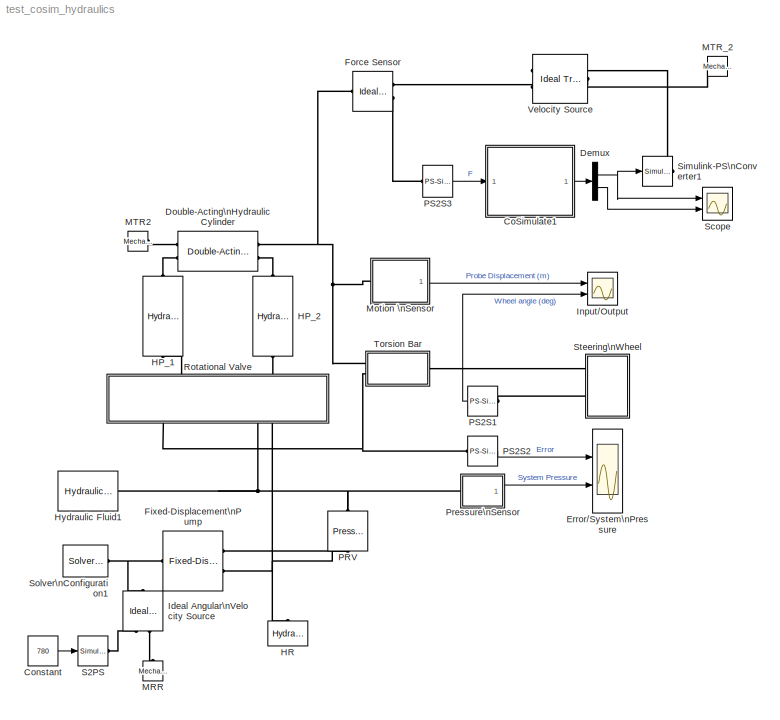
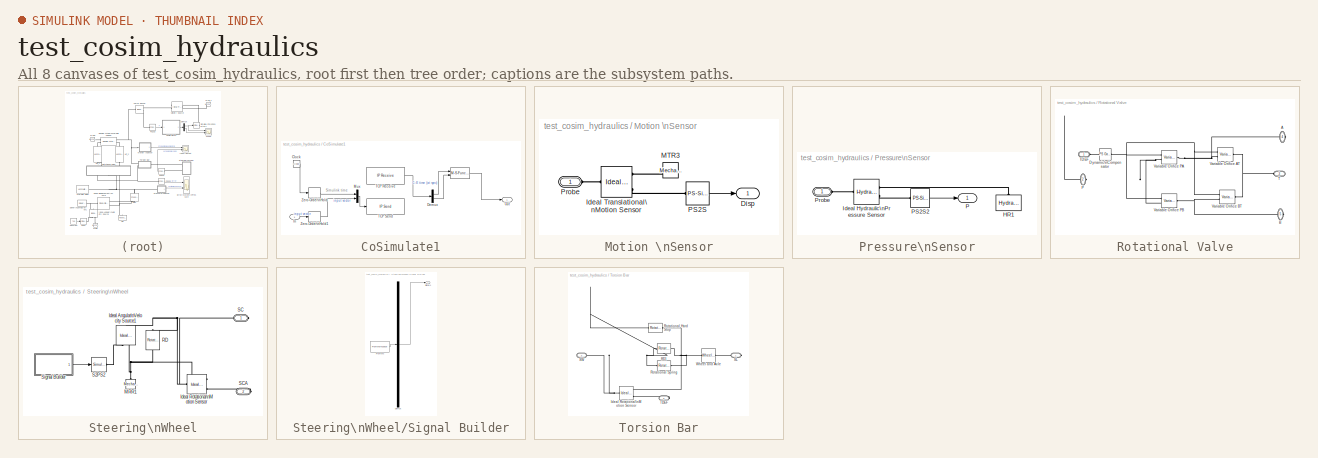
[diagram: thumbnail index - all 8 canvases of the model, root first then tree order]
MODEL test_cosim_hydraulics
KIND model
CONFIG InitFcn = valve_orifice_area = 0.16;\nx0 = 0.8;
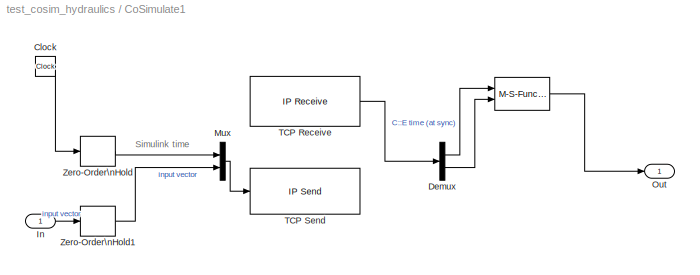
BLOCK [SubSystem] CoSimulate1
  AncestorBlock = CEcosimulation/CoSimulate1
  Description = This block can be used to exchange data with Chrono::Engine.                                                                                      \nA Chrono::Engine program with a running ChCosimulation inferface must be started, it will work as a server; then the Simulink program must be run.\nNote! check that the dimensions of the exchanged vectors do match!
  FunctionWithSeparateData = off
  MaskCallbackString = ||||
  MaskDisplay = image(imread('block_logo.png'))\ndisp('C::E                   ')
  MaskEnableString = on,on,on,on,on
  MaskHideContents = off
  MaskIconFrame = on
  MaskIconOpaque = on
  MaskIconRotate = none
  MaskIconUnits = autoscale
  MaskInitialization = block_receive = [gcb, '/TCP Receive'];\nset_param(block_receive, 'SampleTime', num2str(com_step));\nset_param(block_receive, 'Host', host_name);\nset_param(block_receive, 'Port', num2str(tcp_port));\nset_param(block_receive, 'DataSize', num2str(tcp_data_size+1));\nset_param(block_receive, 'Timeout', num2str(tcp_timeout));\nblock_send = [gcb, '/TCP Send'];\nset_param(block_send, 'Host', host_name);...<+51ch>
  MaskPortRotate = default
  MaskPromptString = Communication step size|N. of scalars received from C::E (as block output)|TCP host name (ex. 'localhost', or 'www.myhost.com')|TCP port (ex. 50007)|TCP timeout (seconds)
  MaskStyleString = edit,edit,edit,edit,edit
  MaskToolTipString = on,on,on,on,on
  MaskTunableValueString = off,off,off,off,off
  MaskValueString = 0.001|2|localhost|50009|15
  MaskVariables = com_step=@1;tcp_data_size=@2;host_name=&3;tcp_port=&4;tcp_timeout=&5;
  MaskVisibilityString = on,on,on,on,on
  MinAlgLoopOccurrences = off
  Opaque = off
  Ports = [1, 1]
  Priority = 100
  PropExecContextOutsideSubsystem = off
  RTWSystemCode = Auto
  RequestExecContextInheritance = off
  SID = 81
BLOCK [M-S-Function] CoSimulate1/ 
  FunctionName = CEcosimulation_interp
  Ports = [2, 1]
  SID = 23
BLOCK [Clock] CoSimulate1/Clock
  Decimation = 10
  SID = 14
BLOCK [Demux] CoSimulate1/Demux
  DisplayOption = bar
  Outputs = [1 -1]
  Ports = [1, 2]
  SID = 15
BLOCK [Inport] CoSimulate1/In
  IconDisplay = Port number
  SID = 13
BLOCK [Mux] CoSimulate1/Mux
  DisplayOption = bar
  Inputs = 2
  Ports = [2, 1]
  SID = 16
BLOCK [Outport] CoSimulate1/Out
  IconDisplay = Port number
  SID = 22
BLOCK [Reference] CoSimulate1/TCP Receive  REF=instrumentlib/TCP//IP Receive
  ByteOrder = LittleEndian
  DataSize = 3
  DataType = double
  DialogController = instrumentcreatedialog
  DialogControllerArgs = DataTag0
  EnableBlockingMode = on
  Host = localhost
  Port = 50009
  Ports = [0, 1]
  Priority = 1
  SID = 17
  SampleTime = 0.001
  SourceBlock = instrumentlib/TCP//IP Receive
  SourceType = TCP/IP Receive
  Timeout = 15
BLOCK [Reference] CoSimulate1/TCP Send  REF=instrumentlib/TCP//IP Send
  ByteOrder = LittleEndian
  DialogController = instrumentcreatedialog
  DialogControllerArgs = DataTag1
  EnableBlockingMode = on
  Host = localhost
  Port = 50009
  Ports = [1]
  Priority = 2
  SID = 18
  SourceBlock = instrumentlib/TCP//IP Send
  SourceType = TCP/IP Send
  Timeout = 10
BLOCK [ZeroOrderHold] CoSimulate1/Zero-Order\nHold
  Priority = 0
  SID = 20
  SampleTime = com_step
BLOCK [ZeroOrderHold] CoSimulate1/Zero-Order\nHold1
  Priority = 0
  SID = 21
  SampleTime = com_step
BLOCK [Constant] Constant
  OutDataType = sfix(16)
  OutScaling = 2^0
  SID = 1
  Value = 780
BLOCK [Demux] Demux
  DisplayOption = bar
  Outputs = 2
  Ports = [1, 2]
  SID = 70
BLOCK [Reference] Double-Acting\nHydraulic Cylinder  REF=sh_lib/Hydraulic Cylinders/Double-Acting\nHydraulic Cylinder
  ClassName = cylinder_da
  D = 150
  D_unit = N/(m/s)
  DialogController = NetworkEngine.DynNeDlgSource
  FunctionWithSeparateData = off
  LocalVarLogging = []
  Ports = [0, 0, 0, 0, 0, 2, 2]
  RTWMemSecDataConstants = Inherit from model
  RTWMemSecDataInternal = Inherit from model
  RTWMemSecDataParameters = Inherit from model
  RTWMemSecFuncExecute = Inherit from model
  RTWMemSecFuncInitTerm = Inherit from model
  SID = 2
  SchemaVersion = 1
  ShowPortLabels = FromPortIcon
  SourceBlock = sh_lib/Hydraulic Cylinders/Double-Acting\nHydraulic Cylinder
  SourceType = Double-Acting\nHydraulic Cylinder
  SystemSampleTime = -1
  Tag = Factory Generic
  area_A = 9.1
  area_A_unit = cm^2
  area_B = 9.1
  area_B_unit = cm^2
  dead_vol_A = 1e-04
  dead_vol_A_unit = m^3
  dead_vol_B = 1e-04
  dead_vol_B_unit = m^3
  init_pos = 9.2
  init_pos_unit = cm
  k_sh = 1.4
  k_sh_unit = 1
  or = 1
  or_unit = 1
  stiff = 1e+06
  stiff_unit = N/m
  stroke = 18.4
  stroke_unit = cm
BLOCK [Scope] Error//System\nPressure
  DataFormat = StructureWithTime
  Floating = off
  NumInputPorts = 2
  Ports = [2]
  SID = 3
  SampleTime = 0
  SaveName = ScopeDataCE
  SaveToWorkspace = on
  TimeRange = 20
  YMax = 0.4~10
  YMin = -0.4~7
BLOCK [Reference] Fixed-Displacement\nPump  REF=sh_lib/Pumps and Motors/Fixed-Displacement\nPump
  ClassName = fx_displ_pump
  D = 1.14e-06
  D_unit = m^3/rad
  DialogController = NetworkEngine.DynNeDlgSource
  FunctionWithSeparateData = off
  LocalVarDescs = |Pump delivery (m^3/s)|Leakage flow rate (m^3/s)|Driving shaft torque (N*m)|Output flow power (W)|Pressure differential (Pa)|Driving shaft angular velocity (rad/s)
  LocalVarLogging = [0 0 0 0 0 0]
  LocalVarNames = |pump_delivery|leakage_flow|torque|power_hyd|pressure_diff|shaft_ang_vel
  Ports = [0, 0, 0, 0, 0, 1, 2]
  RTWMemSecDataConstants = Inherit from model
  RTWMemSecDataInternal = Inherit from model
  RTWMemSecDataParameters = Inherit from model
  RTWMemSecFuncExecute = Inherit from model
  RTWMemSecFuncInitTerm = Inherit from model
  SID = 4
  SchemaVersion = 1
  ShowPortLabels = FromPortIcon
  SourceBlock = sh_lib/Pumps and Motors/Fixed-Displacement\nPump
  SourceType = Fixed-Displacement\nPump
  SystemSampleTime = -1
  Tag = Factory Generic
  efficiency_tot = 0.8
  efficiency_tot_unit = 1
  efficiency_vol = 0.92
  efficiency_vol_unit = 1
  leakage_flow_Log = off
  power_hyd_Log = off
  pr_nominal = 1e+07
  pr_nominal_unit = Pa
  pressure_diff_Log = off
  pump_delivery_Log = off
  shaft_ang_vel_Log = off
  torque_Log = off
  visc_nominal = 18
  visc_nominal_unit = cSt
  w_nominal = 188
  w_nominal_unit = rad/s
BLOCK [Reference] Force Sensor  REF=fl_lib/Mechanical/Mechanical Sensors/Ideal Force Sensor
  ClassName = sensor_force
  DialogController = NetworkEngine.DynNeDlgSource
  FunctionWithSeparateData = off
  LocalVarDescs = |v|f
  LocalVarLogging = []
  LocalVarNames = |v|f
  Ports = [0, 0, 0, 0, 0, 1, 2]
  RTWMemSecDataConstants = Inherit from model
  RTWMemSecDataInternal = Inherit from model
  RTWMemSecDataParameters = Inherit from model
  RTWMemSecFuncExecute = Inherit from model
  RTWMemSecFuncInitTerm = Inherit from model
  SID = 71
  SchemaVersion = 1
  ShowPortLabels = FromPortIcon
  SourceBlock = fl_lib/Mechanical/Mechanical Sensors/Ideal Force Sensor
  SourceType = Ideal Force Sensor
  SystemSampleTime = -1
  Tag = Factory Generic
  f_Log = off
  v_Log = off
BLOCK [Reference] HP_1  REF=sh_lib/Pipelines/Hydraulic Pipeline
  ClassName = pipeline_hyd
  D_h = 0.0112
  D_h_unit = m
  DialogController = NetworkEngine.DynNeDlgSource
  FunctionWithSeparateData = off
  LocalVarLogging = []
  Ports = [0, 0, 0, 0, 0, 1, 1]
  RTWMemSecDataConstants = Inherit from model
  RTWMemSecDataInternal = Inherit from model
  RTWMemSecDataParameters = Inherit from model
  RTWMemSecFuncExecute = Inherit from model
  RTWMemSecFuncInitTerm = Inherit from model
  Re_lam = 2e+03
  Re_lam_unit = 1
  Re_turb = 4e+03
  Re_turb_unit = 1
  SID = 5
  SchemaVersion = 1
  ShowPortLabels = FromPortIcon
  SourceBlock = sh_lib/Pipelines/Hydraulic Pipeline
  SourceType = Hydraulic Pipeline
  SystemSampleTime = -1
  Tag = Factory Generic
  area = 1e-04
  area_unit = m^2
  cs_type = 1
  cs_type_unit = 1
  d_in = 6
  d_in_unit = mm
  k_sh = 1.4
  k_sh_unit = 1
  length = 1.8
  length_ad = 1
  length_ad_unit = m
  length_unit = m
  pr_r_coef = 2e-12
  pr_r_coef_unit = m/Pa
  roughness = 1.5e-05
  roughness_unit = m
  s_factor = 64
  s_factor_unit = 1
  time_const = 0.01
  time_const_unit = s
  wall_type = 1
  wall_type_unit = 1
BLOCK [Reference] HP_2  REF=sh_lib/Pipelines/Hydraulic Pipeline
  ClassName = pipeline_hyd
  D_h = 0.0112
  D_h_unit = m
  DialogController = NetworkEngine.DynNeDlgSource
  FunctionWithSeparateData = off
  LocalVarLogging = []
  Ports = [0, 0, 0, 0, 0, 1, 1]
  RTWMemSecDataConstants = Inherit from model
  RTWMemSecDataInternal = Inherit from model
  RTWMemSecDataParameters = Inherit from model
  RTWMemSecFuncExecute = Inherit from model
  RTWMemSecFuncInitTerm = Inherit from model
  Re_lam = 2e+03
  Re_lam_unit = 1
  Re_turb = 4e+03
  Re_turb_unit = 1
  SID = 6
  SchemaVersion = 1
  ShowPortLabels = FromPortIcon
  SourceBlock = sh_lib/Pipelines/Hydraulic Pipeline
  SourceType = Hydraulic Pipeline
  SystemSampleTime = -1
  Tag = Factory Generic
  area = 1e-04
  area_unit = m^2
  cs_type = 1
  cs_type_unit = 1
  d_in = 6
  d_in_unit = mm
  k_sh = 1.4
  k_sh_unit = 1
  length = 1.6
  length_ad = 1
  length_ad_unit = m
  length_unit = m
  pr_r_coef = 2e-12
  pr_r_coef_unit = m/Pa
  roughness = 1.5e-05
  roughness_unit = m
  s_factor = 64
  s_factor_unit = 1
  time_const = 0.01
  time_const_unit = s
  wall_type = 1
  wall_type_unit = 1
BLOCK [Reference] HR  REF=fl_lib/Hydraulic/Hydraulic Elements/Hydraulic Reference
  ClassName = hydro_reference
  DialogController = NetworkEngine.DynNeDlgSource
  FunctionWithSeparateData = off
  LocalVarDescs = |q
  LocalVarLogging = []
  LocalVarNames = |q
  Ports = [0, 0, 0, 0, 0, 1]
  RTWMemSecDataConstants = Inherit from model
  RTWMemSecDataInternal = Inherit from model
  RTWMemSecDataParameters = Inherit from model
  RTWMemSecFuncExecute = Inherit from model
  RTWMemSecFuncInitTerm = Inherit from model
  SID = 7
  SchemaVersion = 1
  ShowPortLabels = FromPortIcon
  SourceBlock = fl_lib/Hydraulic/Hydraulic Elements/Hydraulic Reference
  SourceType = Hydraulic Reference
  SystemSampleTime = -1
  Tag = Factory Generic
  q_Log = off
BLOCK [Reference] Hydraulic Fluid1  REF=sh_lib/Hydraulic Utilities/Hydraulic Fluid
  ClassName = hydraulic_fluid
  DataSource = 1
  DataSource_unit = 1
  DialogController = NetworkEngine.DynNeDlgSource
  FunctionWithSeparateData = off
  LocalVarLogging = []
  Ports = [0, 0, 0, 0, 0, 0, 1]
  RTWMemSecDataConstants = Inherit from model
  RTWMemSecDataInternal = Inherit from model
  RTWMemSecDataParameters = Inherit from model
  RTWMemSecFuncExecute = Inherit from model
  RTWMemSecFuncInitTerm = Inherit from model
  SID = 8
  SchemaVersion = 1
  SelFluid = 9
  SelFluid_unit = 1
  ShowPortLabels = FromPortIcon
  SourceBlock = sh_lib/Hydraulic Utilities/Hydraulic Fluid
  SourceType = Hydraulic Fluid
  SysTemp = 60
  SysTemp_unit = c
  SystemSampleTime = -1
  Tag = Factory Generic
  TrapAir = 0.005
  TrapAir_unit = 1
  ViscDerFactor = 1
  ViscDerFactor_unit = 1
BLOCK [Reference] Ideal Angular\nVelocity Source  REF=fl_lib/Mechanical/Mechanical Sources/Ideal Angular\nVelocity Source
  ClassName = source_ang_velocity
  DialogController = NetworkEngine.DynNeDlgSource
  FunctionWithSeparateData = off
  LocalVarDescs = |Torque (N*m)|Relative velocity (rad/s)|Power generated by the sourcec(W)
  LocalVarLogging = [0 0 0]
  LocalVarNames = |torque|rel_velocity|power
  Ports = [0, 0, 0, 0, 0, 1, 2]
  RTWMemSecDataConstants = Inherit from model
  RTWMemSecDataInternal = Inherit from model
  RTWMemSecDataParameters = Inherit from model
  RTWMemSecFuncExecute = Inherit from model
  RTWMemSecFuncInitTerm = Inherit from model
  SID = 9
  SchemaVersion = 1
  ShowPortLabels = FromPortIcon
  SourceBlock = fl_lib/Mechanical/Mechanical Sources/Ideal Angular\nVelocity Source
  SourceType = Ideal Angular\nVelocity Source
  SystemSampleTime = -1
  Tag = Factory Generic
  t_Log = off
  w_Log = off
BLOCK [Scope] Input//Output
  DataFormat = StructureWithTime
  Floating = off
  NumInputPorts = 2
  Ports = [2]
  SID = 10
  SampleTime = 0
  TimeRange = 20
  YMax = 0.01~15
  YMin = -0.0075~0
BLOCK [Reference] MRR  REF=fl_lib/Mechanical/Rotational Elements/Mechanical\nRotational Reference
  ClassName = reference_rot
  DialogController = NetworkEngine.DynNeDlgSource
  FunctionWithSeparateData = off
  LocalVarDescs = |t
  LocalVarLogging = []
  LocalVarNames = |t
  Ports = [0, 0, 0, 0, 0, 1]
  RTWMemSecDataConstants = Inherit from model
  RTWMemSecDataInternal = Inherit from model
  RTWMemSecDataParameters = Inherit from model
  RTWMemSecFuncExecute = Inherit from model
  RTWMemSecFuncInitTerm = Inherit from model
  SID = 18
  SchemaVersion = 1
  ShowPortLabels = FromPortIcon
  SourceBlock = fl_lib/Mechanical/Rotational Elements/Mechanical\nRotational Reference
  SourceType = Mechanical\nRotational Reference
  SystemSampleTime = -1
  Tag = Factory Generic
  t_Log = off
BLOCK [Reference] MTR2  REF=fl_lib/Mechanical/Translational\nElements/Mechanical\nTranslational\nReference
  ClassName = reference_transl
  DialogController = NetworkEngine.DynNeDlgSource
  FunctionWithSeparateData = off
  LocalVarDescs = |f
  LocalVarLogging = []
  LocalVarNames = |f
  Ports = [0, 0, 0, 0, 0, 1]
  RTWMemSecDataConstants = Inherit from model
  RTWMemSecDataInternal = Inherit from model
  RTWMemSecDataParameters = Inherit from model
  RTWMemSecFuncExecute = Inherit from model
  RTWMemSecFuncInitTerm = Inherit from model
  SID = 19
  SchemaVersion = 1
  ShowPortLabels = FromPortIcon
  SourceBlock = fl_lib/Mechanical/Translational\nElements/Mechanical\nTranslational\nReference
  SourceType = Mechanical\nTranslational\nReference
  SystemSampleTime = -1
  Tag = Factory Generic
  f_Log = off
BLOCK [Reference] MTR_2  REF=fl_lib/Mechanical/Translational\nElements/Mechanical\nTranslational\nReference
  ClassName = reference_transl
  DialogController = NetworkEngine.DynNeDlgSource
  FunctionWithSeparateData = off
  LocalVarDescs = |f
  LocalVarLogging = []
  LocalVarNames = |f
  Ports = [0, 0, 0, 0, 0, 1]
  RTWMemSecDataConstants = Inherit from model
  RTWMemSecDataInternal = Inherit from model
  RTWMemSecDataParameters = Inherit from model
  RTWMemSecFuncExecute = Inherit from model
  RTWMemSecFuncInitTerm = Inherit from model
  SID = 75
  SchemaVersion = 1
  ShowPortLabels = FromPortIcon
  SourceBlock = fl_lib/Mechanical/Translational\nElements/Mechanical\nTranslational\nReference
  SourceType = Mechanical\nTranslational\nReference
  SystemSampleTime = -1
  Tag = Factory Generic
  f_Log = off
BLOCK [SubSystem] Motion \nSensor
  FunctionWithSeparateData = off
  MaskHideContents = off
  MinAlgLoopOccurrences = off
  Opaque = off
  Ports = [0, 1, 0, 0, 0, 1]
  PropExecContextOutsideSubsystem = off
  RTWSystemCode = Auto
  RequestExecContextInheritance = off
  SID = 20
BLOCK [Outport] Motion \nSensor/Disp
  IconDisplay = Port number
  OutDataType = sfix(16)
  OutScaling = 2^0
  SID = 25
BLOCK [Reference] Motion \nSensor/Ideal Translational\nMotion Sensor  REF=fl_lib/Mechanical/Mechanical Sensors/Ideal Translational\nMotion Sensor
  ClassName = sensor_transl_motion
  DialogController = NetworkEngine.DynNeDlgSource
  FunctionWithSeparateData = off
  LocalVarDescs = |v|f|x
  LocalVarLogging = []
  LocalVarNames = |v|f|x
  Ports = [0, 0, 0, 0, 0, 1, 3]
  RTWMemSecDataConstants = Inherit from model
  RTWMemSecDataInternal = Inherit from model
  RTWMemSecDataParameters = Inherit from model
  RTWMemSecFuncExecute = Inherit from model
  RTWMemSecFuncInitTerm = Inherit from model
  SID = 21
  SchemaVersion = 1
  ShowPortLabels = FromPortIcon
  SourceBlock = fl_lib/Mechanical/Mechanical Sensors/Ideal Translational\nMotion Sensor
  SourceType = Ideal Translational\nMotion Sensor
  SystemSampleTime = -1
  Tag = Factory Generic
  f_Log = off
  offset = 0
  offset_unit = m
  v_Log = off
  x_Log = off
BLOCK [Reference] Motion \nSensor/MTR3  REF=fl_lib/Mechanical/Translational\nElements/Mechanical\nTranslational\nReference
  ClassName = reference_transl
  DialogController = NetworkEngine.DynNeDlgSource
  FunctionWithSeparateData = off
  LocalVarDescs = |f
  LocalVarLogging = []
  LocalVarNames = |f
  Ports = [0, 0, 0, 0, 0, 1]
  RTWMemSecDataConstants = Inherit from model
  RTWMemSecDataInternal = Inherit from model
  RTWMemSecDataParameters = Inherit from model
  RTWMemSecFuncExecute = Inherit from model
  RTWMemSecFuncInitTerm = Inherit from model
  SID = 22
  SchemaVersion = 1
  ShowPortLabels = FromPortIcon
  SourceBlock = fl_lib/Mechanical/Translational\nElements/Mechanical\nTranslational\nReference
  SourceType = Mechanical\nTranslational\nReference
  SystemSampleTime = -1
  Tag = Factory Generic
  f_Log = off
BLOCK [Reference] Motion \nSensor/PS2S  REF=nesl_utility/PS-Simulink\nConverter
  AffineConversion = off
  DialogController = NetworkEngine.DynNeUtilDlgSource
  FunctionWithSeparateData = off
  LeftPortType = input
  PhysicalDomain = network_engine_domain
  Ports = [0, 1, 0, 0, 0, 1]
  RTWMemSecDataConstants = Inherit from model
  RTWMemSecDataInternal = Inherit from model
  RTWMemSecDataParameters = Inherit from model
  RTWMemSecFuncExecute = Inherit from model
  RTWMemSecFuncInitTerm = Inherit from model
  RightPortType = output
  SID = 23
  ShowPortLabels = none
  SourceBlock = nesl_utility/PS-Simulink\nConverter
  SourceType = PS-Simulink\nConverter
  SubClassName = ps_output
  SystemSampleTime = -1
  Unit = 1
BLOCK [PMIOPort] Motion \nSensor/Probe
  Port = 1
  SID = 24
  Side = Left
BLOCK [Reference] PRV  REF=sh_lib/Valves/Pressure Control\nValves/Pressure Relief\nValve
  A_leak = 1e-9
  A_leak_unit = m^2
  C_d = 0.7
  C_d_unit = 1
  ClassName = pressure_relief_vlv
  DialogController = NetworkEngine.DynNeDlgSource
  FunctionWithSeparateData = off
  LocalVarDescs = |Flow rate through the valve (m^3/s)|Pressure differential across the valve (Pa)|Hydraulic loss power (W)|Instantaneous passage area (m^2)|Reynolds number
  LocalVarLogging = [0 0 0 0 0]
  LocalVarNames = |flow_rate|pr_drop|power|area|Re
  Ports = [0, 0, 0, 0, 0, 1, 1]
  RTWMemSecDataConstants = Inherit from model
  RTWMemSecDataInternal = Inherit from model
  RTWMemSecDataParameters = Inherit from model
  RTWMemSecFuncExecute = Inherit from model
  RTWMemSecFuncInitTerm = Inherit from model
  Re_Log = off
  Re_cr = 12
  Re_cr_unit = 1
  SID = 26
  SchemaVersion = 1
  ShowPortLabels = FromPortIcon
  SourceBlock = sh_lib/Valves/Pressure Control\nValves/Pressure Relief\nValve
  SourceType = Pressure Relief\nValve
  SystemSampleTime = -1
  Tag = Factory Generic
  area_Log = off
  area_max = 0.46
  area_max_unit = cm^2
  flow_rate_Log = off
  power_Log = off
  pr_drop_Log = off
  pres_set = 12
  pres_set_unit = bar
  reg_range = 2.1
  reg_range_unit = bar
BLOCK [Reference] PS2S1  REF=nesl_utility/PS-Simulink\nConverter
  AffineConversion = off
  DialogController = NetworkEngine.DynNeUtilDlgSource
  FunctionWithSeparateData = off
  LeftPortType = input
  PhysicalDomain = network_engine_domain
  Ports = [0, 1, 0, 0, 0, 1]
  RTWMemSecDataConstants = Inherit from model
  RTWMemSecDataInternal = Inherit from model
  RTWMemSecDataParameters = Inherit from model
  RTWMemSecFuncExecute = Inherit from model
  RTWMemSecFuncInitTerm = Inherit from model
  RightPortType = output
  SID = 27
  ShowPortLabels = none
  SourceBlock = nesl_utility/PS-Simulink\nConverter
  SourceType = PS-Simulink\nConverter
  SubClassName = ps_output
  SystemSampleTime = -1
  Unit = deg
BLOCK [Reference] PS2S2  REF=nesl_utility/PS-Simulink\nConverter
  AffineConversion = off
  DialogController = NetworkEngine.DynNeUtilDlgSource
  FunctionWithSeparateData = off
  LeftPortType = input
  PhysicalDomain = network_engine_domain
  Ports = [0, 1, 0, 0, 0, 1]
  RTWMemSecDataConstants = Inherit from model
  RTWMemSecDataInternal = Inherit from model
  RTWMemSecDataParameters = Inherit from model
  RTWMemSecFuncExecute = Inherit from model
  RTWMemSecFuncInitTerm = Inherit from model
  RightPortType = output
  SID = 28
  ShowPortLabels = none
  SourceBlock = nesl_utility/PS-Simulink\nConverter
  SourceType = PS-Simulink\nConverter
  SubClassName = ps_output
  SystemSampleTime = -1
  Unit = deg
BLOCK [Reference] PS2S3  REF=nesl_utility/PS-Simulink\nConverter
  AffineConversion = off
  DialogController = NetworkEngine.DynNeUtilDlgSource
  FunctionWithSeparateData = off
  LeftPortType = input
  PhysicalDomain = network_engine_domain
  Ports = [0, 1, 0, 0, 0, 1]
  RTWMemSecDataConstants = Inherit from model
  RTWMemSecDataInternal = Inherit from model
  RTWMemSecDataParameters = Inherit from model
  RTWMemSecFuncExecute = Inherit from model
  RTWMemSecFuncInitTerm = Inherit from model
  RightPortType = output
  SID = 76
  ShowPortLabels = none
  SourceBlock = nesl_utility/PS-Simulink\nConverter
  SourceType = PS-Simulink\nConverter
  SubClassName = ps_output
  SystemSampleTime = -1
  Unit = N
BLOCK [SubSystem] Pressure\nSensor
  FunctionWithSeparateData = off
  MaskHideContents = off
  MinAlgLoopOccurrences = off
  Opaque = off
  Ports = [0, 1, 0, 0, 0, 1]
  PropExecContextOutsideSubsystem = off
  RTWSystemCode = Auto
  RequestExecContextInheritance = off
  SID = 29
BLOCK [Reference] Pressure\nSensor/HR1  REF=fl_lib/Hydraulic/Hydraulic Elements/Hydraulic Reference
  ClassName = hydro_reference
  DialogController = NetworkEngine.DynNeDlgSource
  FunctionWithSeparateData = off
  LocalVarDescs = |q
  LocalVarLogging = []
  LocalVarNames = |q
  Ports = [0, 0, 0, 0, 0, 1]
  RTWMemSecDataConstants = Inherit from model
  RTWMemSecDataInternal = Inherit from model
  RTWMemSecDataParameters = Inherit from model
  RTWMemSecFuncExecute = Inherit from model
  RTWMemSecFuncInitTerm = Inherit from model
  SID = 30
  SchemaVersion = 1
  ShowPortLabels = FromPortIcon
  SourceBlock = fl_lib/Hydraulic/Hydraulic Elements/Hydraulic Reference
  SourceType = Hydraulic Reference
  SystemSampleTime = -1
  Tag = Factory Generic
  q_Log = off
BLOCK [Reference] Pressure\nSensor/Ideal Hydraulic\nPressure Sensor  REF=fl_lib/Hydraulic/Hydraulic Sensors/Hydraulic Pressure\nSensor
  ClassName = sensor_pressure
  DialogController = NetworkEngine.DynNeDlgSource
  FunctionWithSeparateData = off
  LocalVarDescs = |q|p
  LocalVarLogging = []
  LocalVarNames = |q|p
  Ports = [0, 0, 0, 0, 0, 1, 2]
  RTWMemSecDataConstants = Inherit from model
  RTWMemSecDataInternal = Inherit from model
  RTWMemSecDataParameters = Inherit from model
  RTWMemSecFuncExecute = Inherit from model
  RTWMemSecFuncInitTerm = Inherit from model
  SID = 31
  SchemaVersion = 1
  ShowPortLabels = FromPortIcon
  SourceBlock = fl_lib/Hydraulic/Hydraulic Sensors/Hydraulic Pressure\nSensor
  SourceType = Hydraulic Pressure\nSensor
  SystemSampleTime = -1
  Tag = Factory Generic
  p_Log = off
  q_Log = off
BLOCK [Outport] Pressure\nSensor/P
  IconDisplay = Port number
  OutDataType = sfix(16)
  OutScaling = 2^0
  SID = 34
BLOCK [Reference] Pressure\nSensor/PS2S2  REF=nesl_utility/PS-Simulink\nConverter
  AffineConversion = off
  DialogController = NetworkEngine.DynNeUtilDlgSource
  FunctionWithSeparateData = off
  LeftPortType = input
  PhysicalDomain = network_engine_domain
  Ports = [0, 1, 0, 0, 0, 1]
  RTWMemSecDataConstants = Inherit from model
  RTWMemSecDataInternal = Inherit from model
  RTWMemSecDataParameters = Inherit from model
  RTWMemSecFuncExecute = Inherit from model
  RTWMemSecFuncInitTerm = Inherit from model
  RightPortType = output
  SID = 32
  ShowPortLabels = none
  SourceBlock = nesl_utility/PS-Simulink\nConverter
  SourceType = PS-Simulink\nConverter
  SubClassName = ps_output
  SystemSampleTime = -1
  Unit = bar
BLOCK [PMIOPort] Pressure\nSensor/Probe
  Port = 1
  SID = 33
  Side = Left
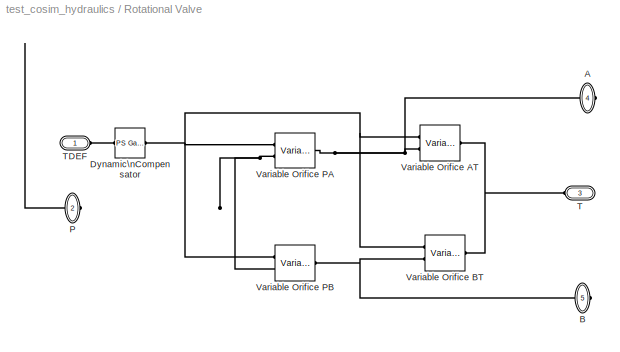
BLOCK [SubSystem] Rotational Valve
  FunctionWithSeparateData = off
  MaskHideContents = off
  MinAlgLoopOccurrences = off
  Opaque = off
  Ports = [0, 0, 0, 0, 0, 3, 2]
  PropExecContextOutsideSubsystem = off
  RTWSystemCode = Auto
  RequestExecContextInheritance = off
  SID = 35
BLOCK [PMIOPort] Rotational Valve/A
  Port = 4
  SID = 44
  Side = Right
BLOCK [PMIOPort] Rotational Valve/B
  Port = 5
  SID = 45
  Side = Right
BLOCK [Reference] Rotational Valve/Dynamic\nCompensator  REF=fl_lib/Physical Signals/Functions/PS Gain
  ClassName = ps_gain
  DialogController = NetworkEngine.DynNeDlgSource
  FunctionWithSeparateData = off
  LocalVarLogging = []
  Ports = [0, 0, 0, 0, 0, 1, 1]
  RTWMemSecDataConstants = Inherit from model
  RTWMemSecDataInternal = Inherit from model
  RTWMemSecDataParameters = Inherit from model
  RTWMemSecFuncExecute = Inherit from model
  RTWMemSecFuncInitTerm = Inherit from model
  SID = 36
  SchemaVersion = 1
  ShowPortLabels = FromPortIcon
  SourceBlock = fl_lib/Physical Signals/Functions/PS Gain
  SourceType = PS Gain
  SystemSampleTime = -1
  Tag = Factory Generic
  gain = 0.0212
  gain_unit = 1
BLOCK [PMIOPort] Rotational Valve/P
  Port = 2
  SID = 42
  Side = Left
BLOCK [PMIOPort] Rotational Valve/T
  Port = 3
  SID = 43
  Side = Left
BLOCK [PMIOPort] Rotational Valve/TDEF
  Port = 1
  SID = 41
  Side = Left
BLOCK [Reference] Rotational Valve/Variable Orifice AT  REF=sh_lib/Orifices/Variable Orifice
  A_leak = 1e-12
  A_leak_unit = m^2
  C_d = 0.7
  C_d_unit = 1
  ClassName = orifice_variable
  DialogController = NetworkEngine.DynNeDlgSource
  FunctionWithSeparateData = off
  LocalVarDescs = |Flow rate through the orifice (m^3)|Pressure drop across the orifice (Pa)|Reynolds number|Orifice opening (m)|Power dissipated in the orifice (W)
  LocalVarLogging = [0 0 0 0 0]
  LocalVarNames = |flow_rate|pr_drop|Re|orif_opening|power
  Ports = [0, 0, 0, 0, 0, 2, 1]
  RTWMemSecDataConstants = Inherit from model
  RTWMemSecDataInternal = Inherit from model
  RTWMemSecDataParameters = Inherit from model
  RTWMemSecFuncExecute = Inherit from model
  RTWMemSecFuncInitTerm = Inherit from model
  Re_Log = off
  Re_cr = 12
  Re_cr_unit = 1
  SID = 37
  SchemaVersion = 1
  ShowPortLabels = FromPortIcon
  SourceBlock = sh_lib/Orifices/Variable Orifice
  SourceType = Variable Orifice
  SystemSampleTime = -1
  Tag = Factory Generic
  area_max = valve_orifice_area
  area_max_unit = cm^2
  area_tab = [  1e-12 4e-12 1e-05 1.02e-05 ]
  area_tab_unit = m^2
  extrap_method = 1
  extrap_method_unit = 1
  flow_rate_Log = off
  flow_rate_tab = [  -1e-12 -6e-14 6e+12 1e+11 ; -8e-08 -4e-08 4e+06 8e+06 ; -0.0025 -0.00103 0.001 0.0024 ; -0.00258 -0.001032 0.00106 0.00247 ; ]
  flow_rate_tab_unit = m^3/s
  interp_method = 1
  interp_method_unit = 1
  mdl_type = 1
  mdl_type_unit = 1
  opening_max = 6
  opening_max_unit = mm
  opening_tab = [  -0.002 0 0.005 0.015 ]
  opening_tab_unit = m
  or = 1
  or_unit = 1
  orif_opening_Log = off
  power_Log = off
  pr_drop_Log = off
  pressure_tab = [  -5e+06 -2e+06 2e+06 5e+06 ]
  pressure_tab_unit = Pa
  x_0 = x0
  x_0_unit = mm
BLOCK [Reference] Rotational Valve/Variable Orifice BT  REF=sh_lib/Orifices/Variable Orifice
  A_leak = 1e-12
  A_leak_unit = m^2
  C_d = 0.7
  C_d_unit = 1
  ClassName = orifice_variable
  DialogController = NetworkEngine.DynNeDlgSource
  FunctionWithSeparateData = off
  LocalVarDescs = |Flow rate through the orifice (m^3)|Pressure drop across the orifice (Pa)|Reynolds number|Orifice opening (m)|Power dissipated in the orifice (W)
  LocalVarLogging = [0 0 0 0 0]
  LocalVarNames = |flow_rate|pr_drop|Re|orif_opening|power
  Ports = [0, 0, 0, 0, 0, 2, 1]
  RTWMemSecDataConstants = Inherit from model
  RTWMemSecDataInternal = Inherit from model
  RTWMemSecDataParameters = Inherit from model
  RTWMemSecFuncExecute = Inherit from model
  RTWMemSecFuncInitTerm = Inherit from model
  Re_Log = off
  Re_cr = 12
  Re_cr_unit = 1
  SID = 38
  SchemaVersion = 1
  ShowPortLabels = FromPortIcon
  SourceBlock = sh_lib/Orifices/Variable Orifice
  SourceType = Variable Orifice
  SystemSampleTime = -1
  Tag = Factory Generic
  area_max = valve_orifice_area
  area_max_unit = cm^2
  area_tab = [  1e-12 4e-12 1e-05 1.02e-05 ]
  area_tab_unit = m^2
  extrap_method = 1
  extrap_method_unit = 1
  flow_rate_Log = off
  flow_rate_tab = [  -1e-12 -6e-14 6e+12 1e+11 ; -8e-08 -4e-08 4e+06 8e+06 ; -0.0025 -0.00103 0.001 0.0024 ; -0.00258 -0.001032 0.00106 0.00247 ; ]
  flow_rate_tab_unit = m^3/s
  interp_method = 1
  interp_method_unit = 1
  mdl_type = 1
  mdl_type_unit = 1
  opening_max = 6
  opening_max_unit = mm
  opening_tab = [  -0.002 0 0.005 0.015 ]
  opening_tab_unit = m
  or = 1
  or_unit = 1
  orif_opening_Log = off
  power_Log = off
  pr_drop_Log = off
  pressure_tab = [  -5e+06 -2e+06 2e+06 5e+06 ]
  pressure_tab_unit = Pa
  x_0 = x0
  x_0_unit = mm
BLOCK [Reference] Rotational Valve/Variable Orifice PA  REF=sh_lib/Orifices/Variable Orifice
  A_leak = 1e-12
  A_leak_unit = m^2
  C_d = 0.7
  C_d_unit = 1
  ClassName = orifice_variable
  DialogController = NetworkEngine.DynNeDlgSource
  FunctionWithSeparateData = off
  LocalVarDescs = |Flow rate through the orifice (m^3)|Pressure drop across the orifice (Pa)|Reynolds number|Orifice opening (m)|Power dissipated in the orifice (W)
  LocalVarLogging = [0 0 0 0 0]
  LocalVarNames = |flow_rate|pr_drop|Re|orif_opening|power
  Ports = [0, 0, 0, 0, 0, 2, 1]
  RTWMemSecDataConstants = Inherit from model
  RTWMemSecDataInternal = Inherit from model
  RTWMemSecDataParameters = Inherit from model
  RTWMemSecFuncExecute = Inherit from model
  RTWMemSecFuncInitTerm = Inherit from model
  Re_Log = off
  Re_cr = 12
  Re_cr_unit = 1
  SID = 39
  SchemaVersion = 1
  ShowPortLabels = FromPortIcon
  SourceBlock = sh_lib/Orifices/Variable Orifice
  SourceType = Variable Orifice
  SystemSampleTime = -1
  Tag = Factory Generic
  area_max = valve_orifice_area
  area_max_unit = cm^2
  area_tab = [  1e-12 4e-12 1e-05 1.02e-05 ]
  area_tab_unit = m^2
  extrap_method = 1
  extrap_method_unit = 1
  flow_rate_Log = off
  flow_rate_tab = [  -1e-12 -6e-14 6e+12 1e+11 ; -8e-08 -4e-08 4e+06 8e+06 ; -0.0025 -0.00103 0.001 0.0024 ; -0.00258 -0.001032 0.00106 0.00247 ; ]
  flow_rate_tab_unit = m^3/s
  interp_method = 1
  interp_method_unit = 1
  mdl_type = 1
  mdl_type_unit = 1
  opening_max = 6
  opening_max_unit = mm
  opening_tab = [  -0.002 0 0.005 0.015 ]
  opening_tab_unit = m
  or = 1
  or_unit = 1
  orif_opening_Log = off
  power_Log = off
  pr_drop_Log = off
  pressure_tab = [  -5e+06 -2e+06 2e+06 5e+06 ]
  pressure_tab_unit = Pa
  x_0 = x0
  x_0_unit = mm
BLOCK [Reference] Rotational Valve/Variable Orifice PB  REF=sh_lib/Orifices/Variable Orifice
  A_leak = 1e-12
  A_leak_unit = m^2
  C_d = 0.7
  C_d_unit = 1
  ClassName = orifice_variable
  DialogController = NetworkEngine.DynNeDlgSource
  FunctionWithSeparateData = off
  LocalVarDescs = |Flow rate through the orifice (m^3)|Pressure drop across the orifice (Pa)|Reynolds number|Orifice opening (m)|Power dissipated in the orifice (W)
  LocalVarLogging = [0 0 0 0 0]
  LocalVarNames = |flow_rate|pr_drop|Re|orif_opening|power
  Ports = [0, 0, 0, 0, 0, 2, 1]
  RTWMemSecDataConstants = Inherit from model
  RTWMemSecDataInternal = Inherit from model
  RTWMemSecDataParameters = Inherit from model
  RTWMemSecFuncExecute = Inherit from model
  RTWMemSecFuncInitTerm = Inherit from model
  Re_Log = off
  Re_cr = 12
  Re_cr_unit = 1
  SID = 40
  SchemaVersion = 1
  ShowPortLabels = FromPortIcon
  SourceBlock = sh_lib/Orifices/Variable Orifice
  SourceType = Variable Orifice
  SystemSampleTime = -1
  Tag = Factory Generic
  area_max = valve_orifice_area
  area_max_unit = cm^2
  area_tab = [  1e-12 4e-12 1e-05 1.02e-05 ]
  area_tab_unit = m^2
  extrap_method = 1
  extrap_method_unit = 1
  flow_rate_Log = off
  flow_rate_tab = [  -1e-12 -6e-14 6e+12 1e+11 ; -8e-08 -4e-08 4e+06 8e+06 ; -0.0025 -0.00103 0.001 0.0024 ; -0.00258 -0.001032 0.00106 0.00247 ; ]
  flow_rate_tab_unit = m^3/s
  interp_method = 1
  interp_method_unit = 1
  mdl_type = 1
  mdl_type_unit = 1
  opening_max = 6
  opening_max_unit = mm
  opening_tab = [  -0.002 0 0.005 0.015 ]
  opening_tab_unit = m
  or = 2
  or_unit = 1
  orif_opening_Log = off
  power_Log = off
  pr_drop_Log = off
  pressure_tab = [  -5e+06 -2e+06 2e+06 5e+06 ]
  pressure_tab_unit = Pa
  x_0 = x0
  x_0_unit = mm
BLOCK [Reference] S2PS  REF=nesl_utility/Simulink-PS\nConverter
  AffineConversion = off
  DialogController = NetworkEngine.DynNeUtilDlgSource
  FunctionWithSeparateData = off
  InputFilterTimeConstant = .001
  LeftPortType = input
  PhysicalDomain = network_engine_domain
  Ports = [1, 0, 0, 0, 0, 0, 1]
  RTWMemSecDataConstants = Inherit from model
  RTWMemSecDataInternal = Inherit from model
  RTWMemSecDataParameters = Inherit from model
  RTWMemSecFuncExecute = Inherit from model
  RTWMemSecFuncInitTerm = Inherit from model
  RightPortType = output
  SID = 46
  ShowPortLabels = none
  SourceBlock = nesl_utility/Simulink-PS\nConverter
  SourceType = Simulink-PS\nConverter
  SubClassName = ps_input
  SystemSampleTime = -1
  UdotUserProvided = 0
  Unit = rpm
BLOCK [Scope] Scope
  DataFormat = StructureWithTime
  Floating = off
  NumInputPorts = 2
  Ports = [2]
  SID = 80
  SampleTime = 0
  SaveName = ScopeData1
  YMax = 5~5
  YMin = -5~-5
BLOCK [Reference] Simulink-PS\nConverter1  REF=nesl_utility/Simulink-PS\nConverter
  AffineConversion = off
  DialogController = NetworkEngine.DynNeUtilDlgSource
  FunctionWithSeparateData = off
  InputFilterTimeConstant = .001
  LeftPortType = input
  PhysicalDomain = network_engine_domain
  Ports = [1, 0, 0, 0, 0, 0, 1]
  RTWMemSecDataConstants = Inherit from model
  RTWMemSecDataInternal = Inherit from model
  RTWMemSecDataParameters = Inherit from model
  RTWMemSecFuncExecute = Inherit from model
  RTWMemSecFuncInitTerm = Inherit from model
  RightPortType = output
  SID = 77
  ShowPortLabels = none
  SourceBlock = nesl_utility/Simulink-PS\nConverter
  SourceType = Simulink-PS\nConverter
  SubClassName = ps_input
  SystemSampleTime = -1
  UdotUserProvided = 0
  Unit = 1
BLOCK [Reference] Solver\nConfiguration1  REF=nesl_utility/Solver\nConfiguration
  Accelerate = off
  Der = off
  DialogController = NetworkEngine.DynNeUtilDlgSource
  DoDC = off
  DoFixedCost = off
  FunctionWithSeparateData = off
  LeftPortType = input
  LinearAlgebra = Sparse
  LocalSolverChoice = NE_BACKWARD_EULER_ADVANCER
  LocalSolverSampleTime = .001
  MaxModeIter = 2
  MaxNonlinIter = 12
  PhysicalDomain = network_engine_domain
  Ports = [0, 0, 0, 0, 0, 0, 1]
  Profile = off
  RTWMemSecDataConstants = Inherit from model
  RTWMemSecDataInternal = Inherit from model
  RTWMemSecDataParameters = Inherit from model
  RTWMemSecFuncExecute = Inherit from model
  RTWMemSecFuncInitTerm = Inherit from model
  Reg = off
  ResidualTolerance = 1e-9
  RightPortType = generic
  SID = 47
  ShowPortLabels = none
  SourceBlock = nesl_utility/Solver\nConfiguration
  SourceType = Solver\nConfiguration
  SubClassName = solver
  SystemSampleTime = -1
  UseLocalSolver = off
BLOCK [SubSystem] Steering\nWheel
  FunctionWithSeparateData = off
  MaskHideContents = off
  MinAlgLoopOccurrences = off
  Opaque = off
  Ports = [0, 0, 0, 0, 0, 0, 2]
  PropExecContextOutsideSubsystem = off
  RTWSystemCode = Auto
  RequestExecContextInheritance = off
  SID = 48
BLOCK [Reference] Steering\nWheel/Ideal Angular\nVelocity Source1  REF=fl_lib/Mechanical/Mechanical Sources/Ideal Angular\nVelocity Source
  ClassName = source_ang_velocity
  DialogController = NetworkEngine.DynNeDlgSource
  FunctionWithSeparateData = off
  LocalVarDescs = |Torque (N*m)|Relative velocity (rad/s)|Power generated by the sourcec(W)
  LocalVarLogging = [0 0 0]
  LocalVarNames = |torque|rel_velocity|power
  Ports = [0, 0, 0, 0, 0, 1, 2]
  RTWMemSecDataConstants = Inherit from model
  RTWMemSecDataInternal = Inherit from model
  RTWMemSecDataParameters = Inherit from model
  RTWMemSecFuncExecute = Inherit from model
  RTWMemSecFuncInitTerm = Inherit from model
  SID = 49
  SchemaVersion = 1
  ShowPortLabels = FromPortIcon
  SourceBlock = fl_lib/Mechanical/Mechanical Sources/Ideal Angular\nVelocity Source
  SourceType = Ideal Angular\nVelocity Source
  SystemSampleTime = -1
  Tag = Factory Generic
  t_Log = off
  w_Log = off
BLOCK [Reference] Steering\nWheel/Ideal Rotational\nMotion Sensor  REF=fl_lib/Mechanical/Mechanical Sensors/Ideal Rotational\nMotion Sensor
  ClassName = sensor_rot_motion
  DialogController = NetworkEngine.DynNeDlgSource
  FunctionWithSeparateData = off
  LocalVarDescs = |w|t|phi
  LocalVarLogging = []
  LocalVarNames = |w|t|phi
  Ports = [0, 0, 0, 0, 0, 1, 3]
  RTWMemSecDataConstants = Inherit from model
  RTWMemSecDataInternal = Inherit from model
  RTWMemSecDataParameters = Inherit from model
  RTWMemSecFuncExecute = Inherit from model
  RTWMemSecFuncInitTerm = Inherit from model
  SID = 50
  SchemaVersion = 1
  ShowPortLabels = FromPortIcon
  SourceBlock = fl_lib/Mechanical/Mechanical Sensors/Ideal Rotational\nMotion Sensor
  SourceType = Ideal Rotational\nMotion Sensor
  SystemSampleTime = -1
  Tag = Factory Generic
  offset = 0
  offset_unit = rad
  phi_Log = off
  t_Log = off
  w_Log = off
BLOCK [Reference] Steering\nWheel/MRR1  REF=fl_lib/Mechanical/Rotational Elements/Mechanical\nRotational Reference
  ClassName = reference_rot
  DialogController = NetworkEngine.DynNeDlgSource
  FunctionWithSeparateData = off
  LocalVarDescs = |t
  LocalVarLogging = []
  LocalVarNames = |t
  Ports = [0, 0, 0, 0, 0, 1]
  RTWMemSecDataConstants = Inherit from model
  RTWMemSecDataInternal = Inherit from model
  RTWMemSecDataParameters = Inherit from model
  RTWMemSecFuncExecute = Inherit from model
  RTWMemSecFuncInitTerm = Inherit from model
  SID = 51
  SchemaVersion = 1
  ShowPortLabels = FromPortIcon
  SourceBlock = fl_lib/Mechanical/Rotational Elements/Mechanical\nRotational Reference
  SourceType = Mechanical\nRotational Reference
  SystemSampleTime = -1
  Tag = Factory Generic
  t_Log = off
BLOCK [Reference] Steering\nWheel/RD  REF=fl_lib/Mechanical/Rotational Elements/Rotational Damper
  ClassName = damper_rot
  D = 0.001
  D_unit = N*m/(rad/s)
  DialogController = NetworkEngine.DynNeDlgSource
  FunctionWithSeparateData = off
  LocalVarDescs = |Damping torque (N*m)|Damper relative velocity (rad/s)|Power dissipated in the damper (W)
  LocalVarLogging = [0 0 0]
  LocalVarNames = |torque|velocity|power
  Ports = [0, 0, 0, 0, 0, 1, 1]
  RTWMemSecDataConstants = Inherit from model
  RTWMemSecDataInternal = Inherit from model
  RTWMemSecDataParameters = Inherit from model
  RTWMemSecFuncExecute = Inherit from model
  RTWMemSecFuncInitTerm = Inherit from model
  SID = 52
  SchemaVersion = 1
  ShowPortLabels = FromPortIcon
  SourceBlock = fl_lib/Mechanical/Rotational Elements/Rotational Damper
  SourceType = Rotational Damper
  SystemSampleTime = -1
  Tag = Factory Generic
  t_Log = off
  w_Log = off
BLOCK [Reference] Steering\nWheel/S2PS2  REF=nesl_utility/Simulink-PS\nConverter
  AffineConversion = off
  DialogController = NetworkEngine.DynNeUtilDlgSource
  FunctionWithSeparateData = off
  InputFilterTimeConstant = .001
  LeftPortType = input
  PhysicalDomain = network_engine_domain
  Ports = [1, 0, 0, 0, 0, 0, 1]
  RTWMemSecDataConstants = Inherit from model
  RTWMemSecDataInternal = Inherit from model
  RTWMemSecDataParameters = Inherit from model
  RTWMemSecFuncExecute = Inherit from model
  RTWMemSecFuncInitTerm = Inherit from model
  RightPortType = output
  SID = 53
  ShowPortLabels = none
  SourceBlock = nesl_utility/Simulink-PS\nConverter
  SourceType = Simulink-PS\nConverter
  SubClassName = ps_input
  SystemSampleTime = -1
  UdotUserProvided = 0
  Unit = rpm
BLOCK [PMIOPort] Steering\nWheel/SC
  Port = 1
  SID = 58
  Side = Right
BLOCK [PMIOPort] Steering\nWheel/SCA
  Port = 2
  SID = 59
  Side = Right
BLOCK [SubSystem] Steering\nWheel/Signal Builder
  ClipboardFcn = sigbuilder_block('clipboard');
  CloseFcn = sigbuilder_block('close');
  CopyFcn = sigbuilder_block('copy');
  DeleteFcn = sigbuilder_block('delete');
  FunctionWithSeparateData = off
  LoadFcn = sigbuilder_block('load');
  MaskDescription = Sigbuilder GUI
  MaskDisplay = plot(0,0,100,100,[10,10,40,40,10],[80,20,20,80,80],[40,10],[50,50], [40,27,10],[65,72,56],[40,25,25,10],[28,28,43,43]);
  MaskHideContents = on
  MaskIconFrame = on
  MaskIconOpaque = off
  MaskIconRotate = port
  MaskIconUnits = autoscale
  MaskInitialization = if ~strcmp(get_param(bdroot(gcbh),'SimulationStatus'),'stopped') tuvar = sigbuilder_block('maskInit'); end
  MaskPortRotate = default
  MaskType = Sigbuilder block
  MinAlgLoopOccurrences = off
  ModelCloseFcn = sigbuilder_block('modelClose');
  NameChangeFcn = sigbuilder_block('namechange');
  Opaque = off
  OpenFcn = sigbuilder_block('open',[437.6 199.2 550.4 400 ]);
  Ports = [0, 1]
  PreSaveFcn = sigbuilder_block('preSave');
  PropExecContextOutsideSubsystem = off
  RTWSystemCode = Auto
  RequestExecContextInheritance = off
  SID = 54
  StartFcn = sigbuilder_block('start');
  StopFcn = sigbuilder_block('stop');
  Tag = STV Subsys
BLOCK [Demux] Steering\nWheel/Signal Builder/Demux
  Outputs = 1
  Ports = [1, 1]
  SID = 55
  Tag = STV Demux
BLOCK [FromWorkspace] Steering\nWheel/Signal Builder/FromWs
  SID = 56
  SampleTime = 0
  SigBuilderData = DataTag2
  Tag = STV FromWs
  VariableName = tuvar
  VnvData = DataTag3
  ZeroCross = on
BLOCK [Outport] Steering\nWheel/Signal Builder/Signal 1
  IconDisplay = Port number
  OutDataType = sfix(16)
  OutScaling = 2^0
  SID = 57
  Tag = STV Outport
BLOCK [SubSystem] Torsion Bar
  FunctionWithSeparateData = off
  MaskHideContents = off
  MinAlgLoopOccurrences = off
  Opaque = off
  Ports = [0, 0, 0, 0, 0, 1, 2]
  PropExecContextOutsideSubsystem = off
  RTWSystemCode = Auto
  RequestExecContextInheritance = off
  SID = 60
BLOCK [Reference] Torsion Bar/Ideal Rotational\nMotion Sensor  REF=fl_lib/Mechanical/Mechanical Sensors/Ideal Rotational\nMotion Sensor
  ClassName = sensor_rot_motion
  DialogController = NetworkEngine.DynNeDlgSource
  FunctionWithSeparateData = off
  LocalVarDescs = |w|t|phi
  LocalVarLogging = []
  LocalVarNames = |w|t|phi
  Ports = [0, 0, 0, 0, 0, 1, 3]
  RTWMemSecDataConstants = Inherit from model
  RTWMemSecDataInternal = Inherit from model
  RTWMemSecDataParameters = Inherit from model
  RTWMemSecFuncExecute = Inherit from model
  RTWMemSecFuncInitTerm = Inherit from model
  SID = 61
  SchemaVersion = 1
  ShowPortLabels = FromPortIcon
  SourceBlock = fl_lib/Mechanical/Mechanical Sensors/Ideal Rotational\nMotion Sensor
  SourceType = Ideal Rotational\nMotion Sensor
  SystemSampleTime = -1
  Tag = Factory Generic
  offset = 0
  offset_unit = rad
  phi_Log = off
  t_Log = off
  w_Log = off
BLOCK [Reference] Torsion Bar/RD1  REF=fl_lib/Mechanical/Rotational Elements/Rotational Damper
  ClassName = damper_rot
  D = 0.01
  D_unit = N*m/(rad/s)
  DialogController = NetworkEngine.DynNeDlgSource
  FunctionWithSeparateData = off
  LocalVarDescs = |Damping torque (N*m)|Damper relative velocity (rad/s)|Power dissipated in the damper (W)
  LocalVarLogging = [0 0 0]
  LocalVarNames = |torque|velocity|power
  Ports = [0, 0, 0, 0, 0, 1, 1]
  RTWMemSecDataConstants = Inherit from model
  RTWMemSecDataInternal = Inherit from model
  RTWMemSecDataParameters = Inherit from model
  RTWMemSecFuncExecute = Inherit from model
  RTWMemSecFuncInitTerm = Inherit from model
  SID = 62
  SchemaVersion = 1
  ShowPortLabels = FromPortIcon
  SourceBlock = fl_lib/Mechanical/Rotational Elements/Rotational Damper
  SourceType = Rotational Damper
  SystemSampleTime = -1
  Tag = Factory Generic
  t_Log = off
  w_Log = off
BLOCK [Reference] Torsion Bar/Rotational Hard Stop  REF=fl_lib/Mechanical/Rotational Elements/Rotational Hard Stop
  ClassName = hardstop_rot
  D_low = 0.01
  D_low_unit = N*m/(rad/s)
  D_up = 0.01
  D_up_unit = N*m/(rad/s)
  DialogController = NetworkEngine.DynNeDlgSource
  FunctionWithSeparateData = off
  LocalVarDescs = |Contact torque (N*m)|Slider-case relative angle (rad)
  LocalVarLogging = [0 0]
  LocalVarNames = |contact_torque|rel_angle
  Ports = [0, 0, 0, 0, 0, 1, 1]
  RTWMemSecDataConstants = Inherit from model
  RTWMemSecDataInternal = Inherit from model
  RTWMemSecDataParameters = Inherit from model
  RTWMemSecFuncExecute = Inherit from model
  RTWMemSecFuncInitTerm = Inherit from model
  SID = 63
  SchemaVersion = 1
  ShowPortLabels = FromPortIcon
  SourceBlock = fl_lib/Mechanical/Rotational Elements/Rotational Hard Stop
  SourceType = Rotational Hard Stop
  SystemSampleTime = -1
  Tag = Factory Generic
  lower_bnd = -9
  lower_bnd_unit = deg
  phi_Log = off
  stiff_low = 1e+06
  stiff_low_unit = N*m/rad
  stiff_up = 1e+06
  stiff_up_unit = N*m/rad
  t_Log = off
  upper_bnd = 9
  upper_bnd_unit = deg
  w_Log = off
BLOCK [Reference] Torsion Bar/Rotational Spring  REF=fl_lib/Mechanical/Rotational Elements/Rotational Spring
  ClassName = spring_rot
  DialogController = NetworkEngine.DynNeDlgSource
  FunctionWithSeparateData = off
  LocalVarDescs = |Spring torque (N*m)|Spring deformation (rad)
  LocalVarLogging = [0 0]
  LocalVarNames = |torque|deformation
  Ports = [0, 0, 0, 0, 0, 1, 1]
  RTWMemSecDataConstants = Inherit from model
  RTWMemSecDataInternal = Inherit from model
  RTWMemSecDataParameters = Inherit from model
  RTWMemSecFuncExecute = Inherit from model
  RTWMemSecFuncInitTerm = Inherit from model
  SID = 64
  SchemaVersion = 1
  ShowPortLabels = FromPortIcon
  SourceBlock = fl_lib/Mechanical/Rotational Elements/Rotational Spring
  SourceType = Rotational Spring
  SystemSampleTime = -1
  Tag = Factory Generic
  init_def = 0
  init_def_unit = rad
  phi_Log = off
  spr_rate = 10
  spr_rate_unit = N*m/rad
  t_Log = off
  w_Log = off
BLOCK [PMIOPort] Torsion Bar/SL
  Port = 1
  SID = 66
  Side = Right
BLOCK [PMIOPort] Torsion Bar/SW
  Port = 2
  SID = 67
  Side = Left
BLOCK [PMIOPort] Torsion Bar/TDEF
  Port = 3
  SID = 68
  Side = Right
BLOCK [Reference] Torsion Bar/Wheel and Axle  REF=fl_lib/Mechanical/Mechanisms/Wheel and Axle
  ClassName = wheel_axle
  DialogController = NetworkEngine.DynNeDlgSource
  FunctionWithSeparateData = off
  LocalVarDescs = |Axle torque (N*m)|Periphery force (N)|Axle angular velocity (rad/s)|Periphery velocity (m/s)
  LocalVarLogging = [0 0 0 0]
  LocalVarNames = |torque_A|force_P|ang_velocity|velocity
  Ports = [0, 0, 0, 0, 0, 1, 1]
  R = 3.8
  RTWMemSecDataConstants = Inherit from model
  RTWMemSecDataInternal = Inherit from model
  RTWMemSecDataParameters = Inherit from model
  RTWMemSecFuncExecute = Inherit from model
  RTWMemSecFuncInitTerm = Inherit from model
  R_unit = cm
  SID = 65
  SchemaVersion = 1
  ShowPortLabels = FromPortIcon
  SourceBlock = fl_lib/Mechanical/Mechanisms/Wheel and Axle
  SourceType = Wheel and Axle
  SystemSampleTime = -1
  Tag = Factory Generic
  ang_velocity_Log = off
  force_P_Log = off
  or = 1
  or_unit = 1
  torque_A_Log = off
  velocity_Log = off
BLOCK [Reference] Velocity Source  REF=fl_lib/Mechanical/Mechanical Sources/Ideal Translational\nVelocity Source
  ClassName = velocity
  DialogController = NetworkEngine.DynNeDlgSource
  FunctionWithSeparateData = off
  LocalVarDescs = |v|f
  LocalVarLogging = [0 0]
  LocalVarNames = |v|f
  Ports = [0, 0, 0, 0, 0, 1, 2]
  RTWMemSecDataConstants = Inherit from model
  RTWMemSecDataInternal = Inherit from model
  RTWMemSecDataParameters = Inherit from model
  RTWMemSecFuncExecute = Inherit from model
  RTWMemSecFuncInitTerm = Inherit from model
  SID = 78
  SchemaVersion = 1
  ShowPortLabels = FromPortIcon
  SourceBlock = fl_lib/Mechanical/Mechanical Sources/Ideal Translational\nVelocity Source
  SourceType = Ideal Translational\nVelocity Source
  SystemSampleTime = -1
  f_Log = off
  v_Log = off
ANNOTATION CoSimulate1: Simulink time
LINE CoSimulate1/ :1 -> CoSimulate1/Out:1
LINE CoSimulate1/Clock:1 -> CoSimulate1/Zero-Order\nHold:1
LINE CoSimulate1/Demux:1 -> CoSimulate1/ :1
LINE CoSimulate1/Demux:2 -> CoSimulate1/ :2
LINE CoSimulate1/In:1 -> CoSimulate1/Zero-Order\nHold1:1
LINE CoSimulate1/Mux:1 -> CoSimulate1/TCP Send:1
LINE CoSimulate1/TCP Receive:1 -> CoSimulate1/Demux:1
LINE CoSimulate1/Zero-Order\nHold1:1 -> CoSimulate1/Mux:2
LINE CoSimulate1/Zero-Order\nHold:1 -> CoSimulate1/Mux:1
LINE CoSimulate1:1 -> Demux:1
LINE Constant:1 -> S2PS:1
NET Demux:1 -> Scope:1, Simulink-PS\nConverter1:1
LINE Demux:2 -> Scope:2
LINE Motion \nSensor/PS2S:1 -> Motion \nSensor/Disp:1
LINE Motion \nSensor:1 -> Input//Output:1
LINE PS2S1:1 -> Input//Output:2
LINE PS2S2:1 -> Error//System\nPressure:1
LINE PS2S3:1 -> CoSimulate1:1
LINE Pressure\nSensor/PS2S2:1 -> Pressure\nSensor/P:1
LINE Pressure\nSensor:1 -> Error//System\nPressure:2
LINE Steering\nWheel/Signal Builder/Demux:1 -> Steering\nWheel/Signal Builder/Signal 1:1
LINE Steering\nWheel/Signal Builder/FromWs:1 -> Steering\nWheel/Signal Builder/Demux:1
LINE Steering\nWheel/Signal Builder:1 -> Steering\nWheel/S2PS2:1
PLINE Double-Acting\nHydraulic Cylinder:LConn1 -- MTR2:LConn1
PLINE Double-Acting\nHydraulic Cylinder:LConn2 -- HP_1:RConn1
PNET net1: Double-Acting\nHydraulic Cylinder:RConn1 -- Force Sensor:LConn1 -- Motion \nSensor:LConn1 -- Torsion Bar:RConn1
PLINE Double-Acting\nHydraulic Cylinder:RConn2 -- HP_2:LConn1
PNET net2: Fixed-Displacement\nPump:LConn1 -- Ideal Angular\nVelocity Source:LConn1 -- Solver\nConfiguration1:RConn1
PNET net3: Fixed-Displacement\nPump:RConn1 -- Hydraulic Fluid1:RConn1 -- PRV:LConn1 -- Pressure\nSensor:LConn1 -- Rotational Valve:LConn2
PNET net4: Fixed-Displacement\nPump:RConn2 -- HR:LConn1 -- PRV:RConn1 -- Rotational Valve:LConn3
PLINE Force Sensor:RConn1 -- Velocity Source:LConn1
PLINE Force Sensor:RConn2 -- PS2S3:LConn1
PLINE HP_1:LConn1 -- Rotational Valve:RConn1
PLINE HP_2:RConn1 -- Rotational Valve:RConn2
PLINE Ideal Angular\nVelocity Source:RConn1 -- S2PS:RConn1
PLINE Ideal Angular\nVelocity Source:RConn2 -- MRR:LConn1
PLINE MTR_2:LConn1 -- Velocity Source:RConn2
PLINE Motion \nSensor/Ideal Translational\nMotion Sensor:LConn1 -- Motion \nSensor/Probe:RConn1
PLINE Motion \nSensor/Ideal Translational\nMotion Sensor:RConn1 -- Motion \nSensor/MTR3:LConn1
PLINE Motion \nSensor/Ideal Translational\nMotion Sensor:RConn3 -- Motion \nSensor/PS2S:LConn1
PLINE PS2S1:LConn1 -- Steering\nWheel:RConn2
PNET net5: PS2S2:LConn1 -- Rotational Valve:LConn1 -- Torsion Bar:RConn2
PLINE Pressure\nSensor/HR1:LConn1 -- Pressure\nSensor/Ideal Hydraulic\nPressure Sensor:RConn1
PLINE Pressure\nSensor/Ideal Hydraulic\nPressure Sensor:LConn1 -- Pressure\nSensor/Probe:RConn1
PLINE Pressure\nSensor/Ideal Hydraulic\nPressure Sensor:RConn2 -- Pressure\nSensor/PS2S2:LConn1
PNET net6: Rotational Valve/A:RConn1 -- Rotational Valve/Variable Orifice AT:LConn2 -- Rotational Valve/Variable Orifice PA:RConn1
PNET net7: Rotational Valve/B:RConn1 -- Rotational Valve/Variable Orifice BT:LConn2 -- Rotational Valve/Variable Orifice PB:RConn1
PLINE Rotational Valve/Dynamic\nCompensator:LConn1 -- Rotational Valve/TDEF:RConn1
PNET net8: Rotational Valve/Dynamic\nCompensator:RConn1 -- Rotational Valve/Variable Orifice AT:LConn1 -- Rotational Valve/Variable Orifice BT:LConn1 -- Rotational Valve/Variable Orifice PA:LConn1 -- Rotational Valve/Variable Orifice PB:LConn1
PNET net9: Rotational Valve/P:RConn1 -- Rotational Valve/Variable Orifice PA:LConn2 -- Rotational Valve/Variable Orifice PB:LConn2
PNET net10: Rotational Valve/T:RConn1 -- Rotational Valve/Variable Orifice AT:RConn1 -- Rotational Valve/Variable Orifice BT:RConn1
PLINE Simulink-PS\nConverter1:RConn1 -- Velocity Source:RConn1
PNET net11: Steering\nWheel/Ideal Angular\nVelocity Source1:LConn1 -- Steering\nWheel/Ideal Rotational\nMotion Sensor:LConn1 -- Steering\nWheel/RD:LConn1 -- Steering\nWheel/SC:RConn1
PLINE Steering\nWheel/Ideal Angular\nVelocity Source1:RConn1 -- Steering\nWheel/S2PS2:RConn1
PNET net12: Steering\nWheel/Ideal Angular\nVelocity Source1:RConn2 -- Steering\nWheel/Ideal Rotational\nMotion Sensor:RConn1 -- Steering\nWheel/MRR1:LConn1 -- Steering\nWheel/RD:RConn1
PLINE Steering\nWheel/Ideal Rotational\nMotion Sensor:RConn3 -- Steering\nWheel/SCA:RConn1
PLINE Steering\nWheel:RConn1 -- Torsion Bar:LConn1
PNET net13: Torsion Bar/Ideal Rotational\nMotion Sensor:LConn1 -- Torsion Bar/RD1:LConn1 -- Torsion Bar/Rotational Hard Stop:LConn1 -- Torsion Bar/Rotational Spring:LConn1 -- Torsion Bar/SW:RConn1
PNET net14: Torsion Bar/Ideal Rotational\nMotion Sensor:RConn1 -- Torsion Bar/RD1:RConn1 -- Torsion Bar/Rotational Hard Stop:RConn1 -- Torsion Bar/Rotational Spring:RConn1 -- Torsion Bar/Wheel and Axle:LConn1
PLINE Torsion Bar/Ideal Rotational\nMotion Sensor:RConn3 -- Torsion Bar/TDEF:RConn1
PLINE Torsion Bar/SL:RConn1 -- Torsion Bar/Wheel and Axle:RConn1
note: NET lines group one-source signal fan-out (src -> all destinations, sorted); 1:1 wires keep LINE; PNET lines group multi-terminal physical nets as a canonical sorted terminal list (undirected conserving connections); 2-terminal nets keep the pairwise PLINE form
